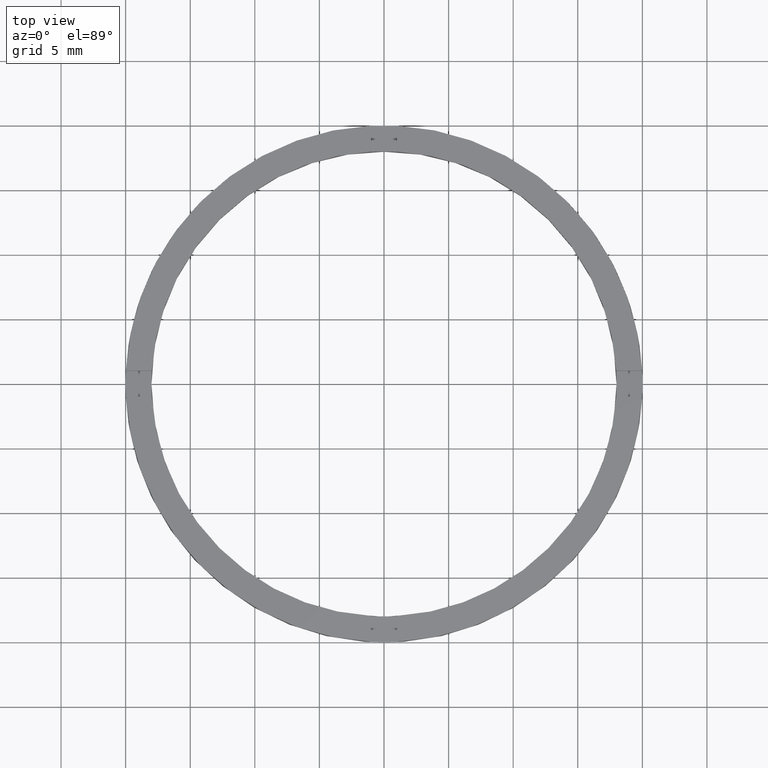
[diagram: clean part render]
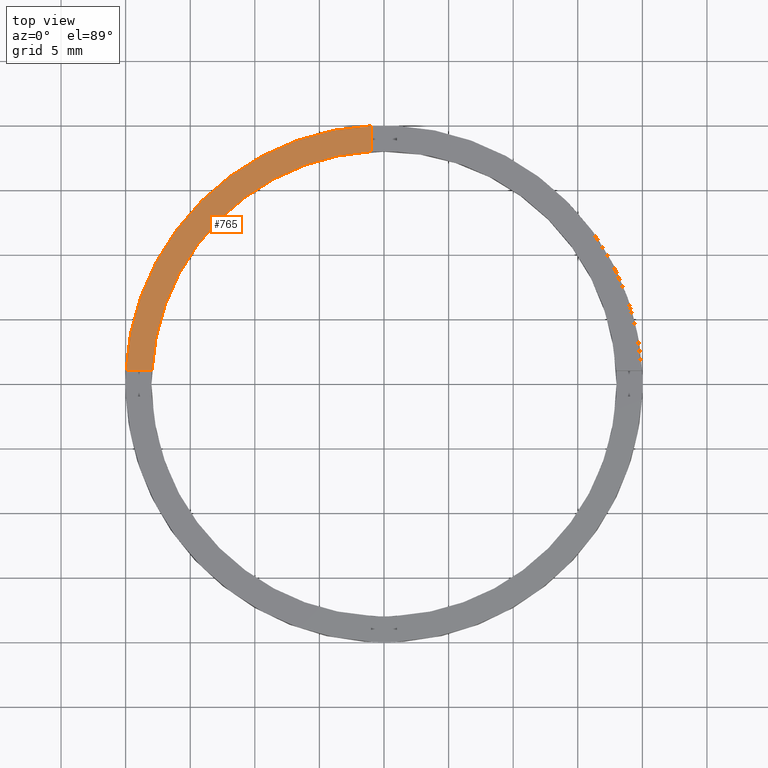
[diagram: same view with one face highlighted and labeled with its STEP entity id]
A machine part, top view. The second image highlights one B-rep face of the part: STEP entity #765.
In plain terms, the highlighted planar face has unit normal (0, 0, 1).
Its self-contained STEP definition (entity closure, byte-faithful):
#1 = CARTESIAN_POINT ( 'NONE',  ( 0.000000000000000000, 0.000000000000000000, 2.500000000000000000 ) ) ;
#4 = CARTESIAN_POINT ( 'NONE',  ( -1.000000000000026867, 17.97220075561142494, 2.500000000000000000 ) ) ;
#28 = VERTEX_POINT ( 'NONE', #368 ) ;
#55 = ORIENTED_EDGE ( 'NONE', *, *, #265, .F. ) ;
#61 = PLANE ( 'NONE',  #519 ) ;
#83 = DIRECTION ( 'NONE',  ( -0.000000000000000000, -1.000000000000000000, -0.000000000000000000 ) ) ;
#96 = CARTESIAN_POINT ( 'NONE',  ( -1.000000000000026867, 19.97498435543817763, 2.500000000000000000 ) ) ;
#123 = ORIENTED_EDGE ( 'NONE', *, *, #388, .F. ) ;
#127 = ORIENTED_EDGE ( 'NONE', *, *, #747, .F. ) ;
#173 = CIRCLE ( 'NONE', #618, 18.00000000000000000 ) ;
#176 = FACE_OUTER_BOUND ( 'NONE', #484, .T. ) ;
#181 = CARTESIAN_POINT ( 'NONE',  ( -19.97498435543818118, 0.9999999999999742428, 2.500000000000000000 ) ) ;
#185 = DIRECTION ( 'NONE',  ( 0.000000000000000000, 0.000000000000000000, 1.000000000000000000 ) ) ;
#227 = VERTEX_POINT ( 'NONE', #181 ) ;
#235 = DIRECTION ( 'NONE',  ( 1.000000000000000000, 0.000000000000000000, -0.000000000000000000 ) ) ;
#256 = EDGE_CURVE ( 'NONE', #755, #227, #372, .T. ) ;
#265 = EDGE_CURVE ( 'NONE', #28, #227, #613, .T. ) ;
#359 = VECTOR ( 'NONE', #551, 1000.000000000000000 ) ;
#368 = CARTESIAN_POINT ( 'NONE',  ( -17.97220075561142849, 0.9999999999999746869, 2.500000000000000000 ) ) ;
#372 = CIRCLE ( 'NONE', #390, 20.00000000000000000 ) ;
#388 = EDGE_CURVE ( 'NONE', #755, #727, #683, .T. ) ;
#390 = AXIS2_PLACEMENT_3D ( 'NONE', #533, #425, #529 ) ;
#417 = DIRECTION ( 'NONE',  ( 1.000000000000000000, 0.000000000000000000, 0.000000000000000000 ) ) ;
#422 = CARTESIAN_POINT ( 'NONE',  ( -1.000000000000026867, 10.00000000000000000, 2.500000000000000000 ) ) ;
#425 = DIRECTION ( 'NONE',  ( 0.000000000000000000, 0.000000000000000000, 1.000000000000000000 ) ) ;
#484 = EDGE_LOOP ( 'NONE', ( #123, #642, #55, #127 ) ) ;
#519 = AXIS2_PLACEMENT_3D ( 'NONE', #662, #185, #235 ) ;
#529 = DIRECTION ( 'NONE',  ( 1.000000000000000000, 0.000000000000000000, 0.000000000000000000 ) ) ;
#533 = CARTESIAN_POINT ( 'NONE',  ( 0.000000000000000000, 0.000000000000000000, 2.500000000000000000 ) ) ;
#551 = DIRECTION ( 'NONE',  ( -1.000000000000000000, -1.734723475976807341E-16, 0.000000000000000000 ) ) ;
#613 = LINE ( 'NONE', #650, #359 ) ;
#618 = AXIS2_PLACEMENT_3D ( 'NONE', #1, #655, #417 ) ;
#642 = ORIENTED_EDGE ( 'NONE', *, *, #256, .T. ) ;
#650 = CARTESIAN_POINT ( 'NONE',  ( -10.00000000000018652, 0.9999999999999759082, 2.500000000000000000 ) ) ;
#655 = DIRECTION ( 'NONE',  ( 0.000000000000000000, 0.000000000000000000, 1.000000000000000000 ) ) ;
#662 = CARTESIAN_POINT ( 'NONE',  ( 0.000000000000000000, 0.000000000000000000, 2.500000000000000000 ) ) ;
#683 = LINE ( 'NONE', #422, #687 ) ;
#687 = VECTOR ( 'NONE', #83, 1000.000000000000000 ) ;
#727 = VERTEX_POINT ( 'NONE', #4 ) ;
#747 = EDGE_CURVE ( 'NONE', #727, #28, #173, .T. ) ;
#755 = VERTEX_POINT ( 'NONE', #96 ) ;
#765 = ADVANCED_FACE ( 'NONE', ( #176 ), #61, .T. ) ;